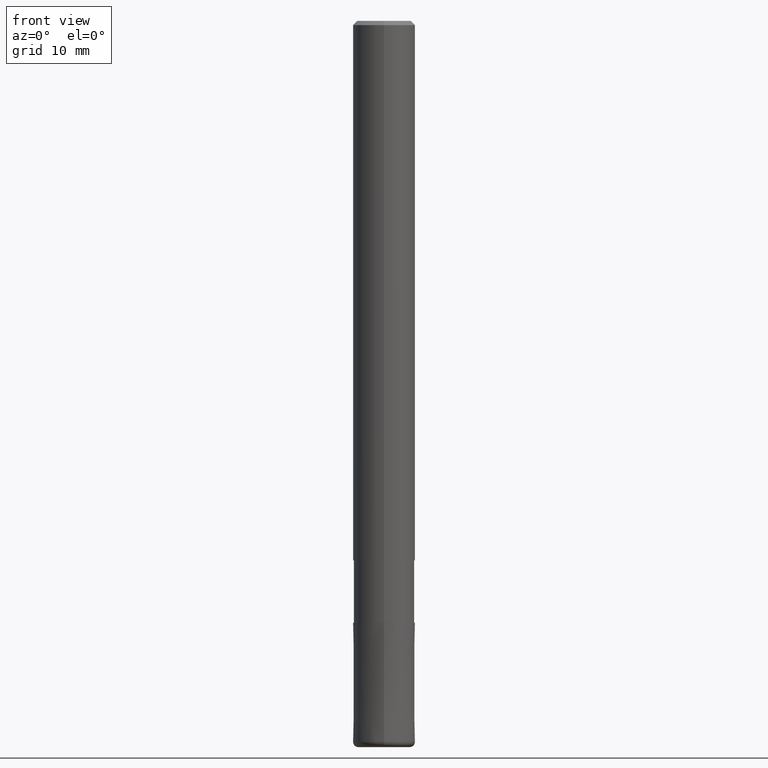
[diagram: clean part render]
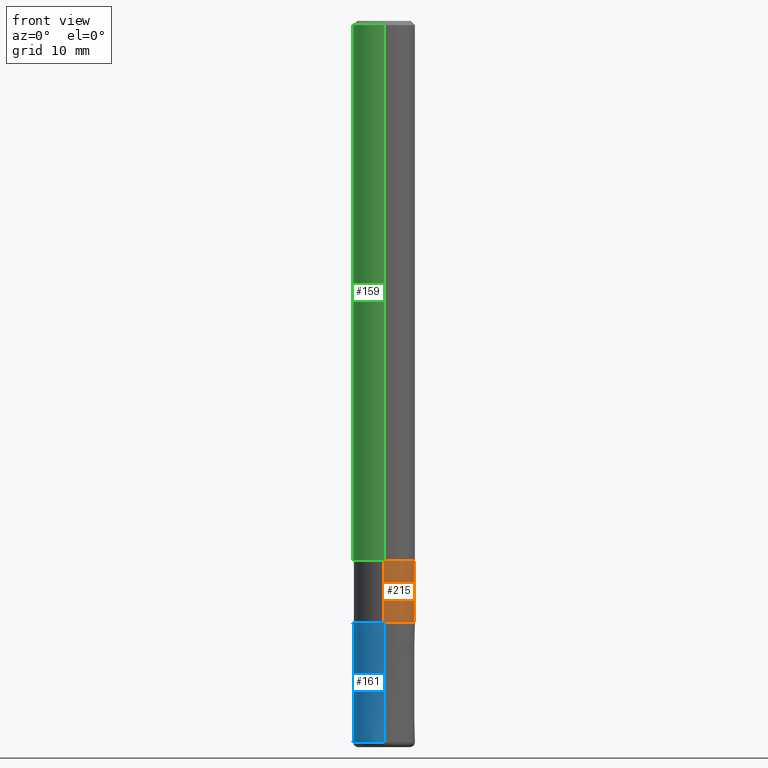
[diagram: same view with three faces highlighted in distinct colors, each labeled with its STEP entity id]
A machine part, front view with three faces highlighted in distinct colors.
Their STEP definitions:

[orange] entity #215 — the highlighted cylindrical surface (edge-blend (fillet) strip) has radius 2.9249 mm, axis along (-0, -0, 1).
#175=VERTEX_POINT('',#373);
#189=EDGE_CURVE('',#175,#267,#390,.T.);
#199=EDGE_CURVE('',#221,#261,#401,.T.);
#215=ADVANCED_FACE('',(#417),#418,.T.);
#221=VERTEX_POINT('',#425);
#245=EDGE_CURVE('',#261,#175,#453,.T.);
#253=EDGE_CURVE('',#221,#267,#461,.T.);
#261=VERTEX_POINT('',#470);
#267=VERTEX_POINT('',#476);
#373=CARTESIAN_POINT('',(3.58191235461276E-016,-2.92495,-58.0));
#390=LINE('',#619,#620);
#401=LINE('',#634,#635);
#417=FACE_OUTER_BOUND('',#655,.T.);
#418=CYLINDRICAL_SURFACE('',#656,2.92495);
#425=CARTESIAN_POINT('',(0.0,2.92495,-52.0));
#453=CIRCLE('',#697,2.92495);
#461=CIRCLE('',#709,2.92495);
#470=CARTESIAN_POINT('',(0.0,2.92495,-58.0));
#476=CARTESIAN_POINT('',(3.58191235461276E-016,-2.92495,-52.0));
#619=CARTESIAN_POINT('',(3.58191235461276E-016,-2.92495,-55.0));
#620=VECTOR('',#870,1.0);
#634=CARTESIAN_POINT('',(-3.58191235461276E-016,2.92495,-55.0));
#635=VECTOR('',#880,1.0);
#655=EDGE_LOOP('',(#894,#895,#896,#897));
#656=AXIS2_PLACEMENT_3D('',#898,#899,#900);
#697=AXIS2_PLACEMENT_3D('',#949,#950,#951);
#709=AXIS2_PLACEMENT_3D('',#956,#957,#958);
#870=DIRECTION('',(-0.0,-0.0,1.0));
#880=DIRECTION('',(0.0,0.0,-1.0));
#894=ORIENTED_EDGE('',*,*,#199,.F.);
#895=ORIENTED_EDGE('',*,*,#253,.T.);
#896=ORIENTED_EDGE('',*,*,#189,.F.);
#897=ORIENTED_EDGE('',*,*,#245,.F.);
#898=CARTESIAN_POINT('',(0.0,0.0,-55.0));
#899=DIRECTION('',(-0.0,-0.0,1.0));
#900=DIRECTION('',(0.0,1.0,0.0));
#949=CARTESIAN_POINT('',(0.0,0.0,-58.0));
#950=DIRECTION('',(0.0,0.0,-1.0));
#951=DIRECTION('',(0.0,1.0,0.0));
#956=CARTESIAN_POINT('',(0.0,0.0,-52.0));
#957=DIRECTION('',(0.0,0.0,-1.0));
#958=DIRECTION('',(0.0,1.0,0.0));

[blue] entity #161 — the highlighted conical surface has half-angle 0 deg.
#125=EDGE_CURVE('',#281,#207,#314,.T.);
#161=ADVANCED_FACE('',(#356),#357,.T.);
#167=EDGE_CURVE('',#281,#185,#365,.T.);
#169=EDGE_CURVE('',#207,#203,#367,.T.);
#185=VERTEX_POINT('',#386);
#203=VERTEX_POINT('',#405);
#207=VERTEX_POINT('',#409);
#247=EDGE_CURVE('',#203,#185,#455,.T.);
#281=VERTEX_POINT('',#492);
#314=LINE('',#521,#522);
#356=FACE_OUTER_BOUND('',#576,.T.);
#357=CONICAL_SURFACE('',#577,2.99995,8.69565217371222E-006);
#365=CIRCLE('',#586,3.0);
#367=CIRCLE('',#589,2.9999);
#386=CARTESIAN_POINT('',(0.0,3.0,-69.5));
#405=CARTESIAN_POINT('',(0.0,2.9999,-58.0));
#409=CARTESIAN_POINT('',(3.67369660083175E-016,-2.9999,-58.0));
#455=LINE('',#700,#701);
#492=CARTESIAN_POINT('',(3.67381906146713E-016,-3.0,-69.5));
#521=CARTESIAN_POINT('',(3.67375783114944E-016,-2.99995,-63.75));
#522=VECTOR('',#759,1.0);
#576=EDGE_LOOP('',(#812,#813,#814,#815));
#577=AXIS2_PLACEMENT_3D('',#816,#817,#818);
#586=AXIS2_PLACEMENT_3D('',#835,#836,#837);
#589=AXIS2_PLACEMENT_3D('',#838,#839,#840);
#700=CARTESIAN_POINT('',(-3.67375783114944E-016,2.99995,-63.75));
#701=VECTOR('',#952,1.0);
#759=DIRECTION('',(-1.06487509024232E-021,8.69565217360264E-006,0.999999999962193));
#812=ORIENTED_EDGE('',*,*,#247,.T.);
#813=ORIENTED_EDGE('',*,*,#167,.F.);
#814=ORIENTED_EDGE('',*,*,#125,.T.);
#815=ORIENTED_EDGE('',*,*,#169,.T.);
#816=CARTESIAN_POINT('',(0.0,0.0,-63.75));
#817=DIRECTION('',(0.0,-0.0,-1.0));
#818=DIRECTION('',(0.0,1.0,0.0));
#835=CARTESIAN_POINT('',(0.0,0.0,-69.5));
#836=DIRECTION('',(0.0,0.0,-1.0));
#837=DIRECTION('',(0.0,1.0,0.0));
#838=CARTESIAN_POINT('',(0.0,0.0,-58.0));
#839=DIRECTION('',(0.0,0.0,-1.0));
#840=DIRECTION('',(0.0,1.0,0.0));
#952=DIRECTION('',(-1.06487509024232E-021,8.69565217360264E-006,-0.999999999962193));

[green] entity #159 — the highlighted cylindrical surface (edge-blend (fillet) strip) has radius 3 mm, axis along (-0, -0, 1).
#119=EDGE_CURVE('',#233,#143,#308,.T.);
#123=EDGE_CURVE('',#231,#143,#312,.T.);
#131=EDGE_CURVE('',#233,#191,#320,.T.);
#143=VERTEX_POINT('',#335);
#159=ADVANCED_FACE('',(#353),#354,.T.);
#173=EDGE_CURVE('',#191,#231,#371,.T.);
#191=VERTEX_POINT('',#392);
#231=VERTEX_POINT('',#436);
#233=VERTEX_POINT('',#438);
#308=CIRCLE('',#512,3.0);
#312=LINE('',#517,#518);
#320=LINE('',#531,#532);
#335=CARTESIAN_POINT('',(0.0,3.0,-52.0));
#353=FACE_OUTER_BOUND('',#573,.T.);
#354=CYLINDRICAL_SURFACE('',#574,3.0);
#371=CIRCLE('',#596,3.0);
#392=CARTESIAN_POINT('',(3.67381906146713E-016,-3.0,-0.399999999999999));
#436=CARTESIAN_POINT('',(0.0,3.0,-0.399999999999999));
#438=CARTESIAN_POINT('',(3.67381906146713E-016,-3.0,-52.0));
#512=AXIS2_PLACEMENT_3D('',#755,#756,#757);
#517=CARTESIAN_POINT('',(-3.67381906146713E-016,3.0,-26.2));
#518=VECTOR('',#758,1.0);
#531=CARTESIAN_POINT('',(3.67381906146713E-016,-3.0,-26.2));
#532=VECTOR('',#766,1.0);
#573=EDGE_LOOP('',(#804,#805,#806,#807));
#574=AXIS2_PLACEMENT_3D('',#808,#809,#810);
#596=AXIS2_PLACEMENT_3D('',#842,#843,#844);
#755=CARTESIAN_POINT('',(0.0,0.0,-52.0));
#756=DIRECTION('',(0.0,0.0,-1.0));
#757=DIRECTION('',(0.0,1.0,0.0));
#758=DIRECTION('',(0.0,0.0,-1.0));
#766=DIRECTION('',(-0.0,-0.0,1.0));
#804=ORIENTED_EDGE('',*,*,#123,.T.);
#805=ORIENTED_EDGE('',*,*,#119,.F.);
#806=ORIENTED_EDGE('',*,*,#131,.T.);
#807=ORIENTED_EDGE('',*,*,#173,.T.);
#808=CARTESIAN_POINT('',(0.0,0.0,-26.2));
#809=DIRECTION('',(-0.0,-0.0,1.0));
#810=DIRECTION('',(0.0,1.0,0.0));
#842=CARTESIAN_POINT('',(0.0,0.0,-0.399999999999999));
#843=DIRECTION('',(0.0,0.0,-1.0));
#844=DIRECTION('',(0.0,1.0,0.0));